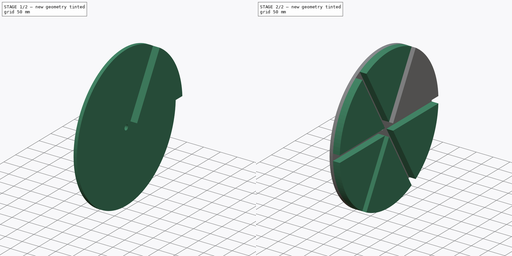
[diagram: build sequence overview — one tinted view per stage of 2, left to right]
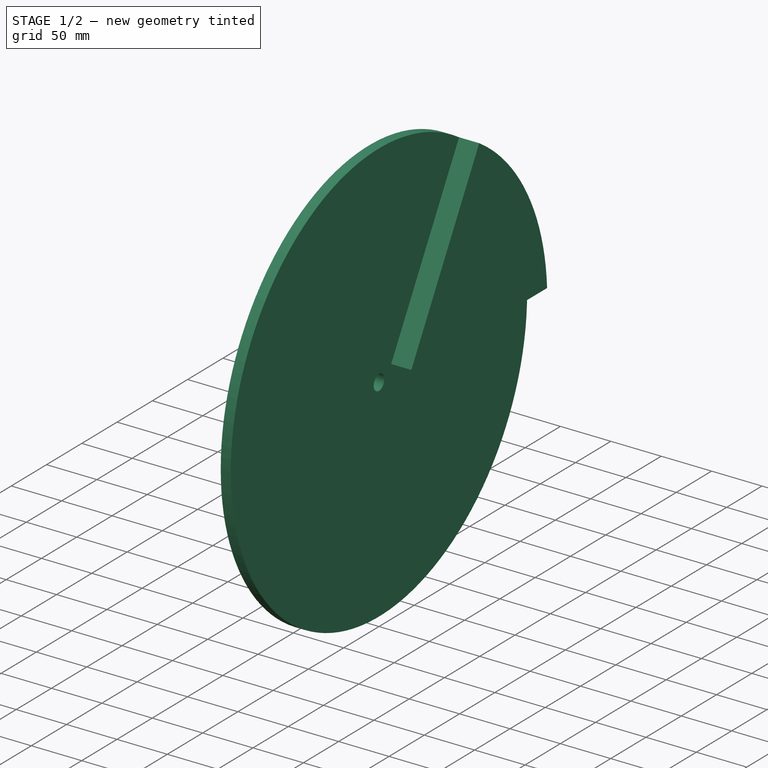
[diagram: stage 1 of 2 — iso view after this stage's code; geometry added in this stage tinted green]
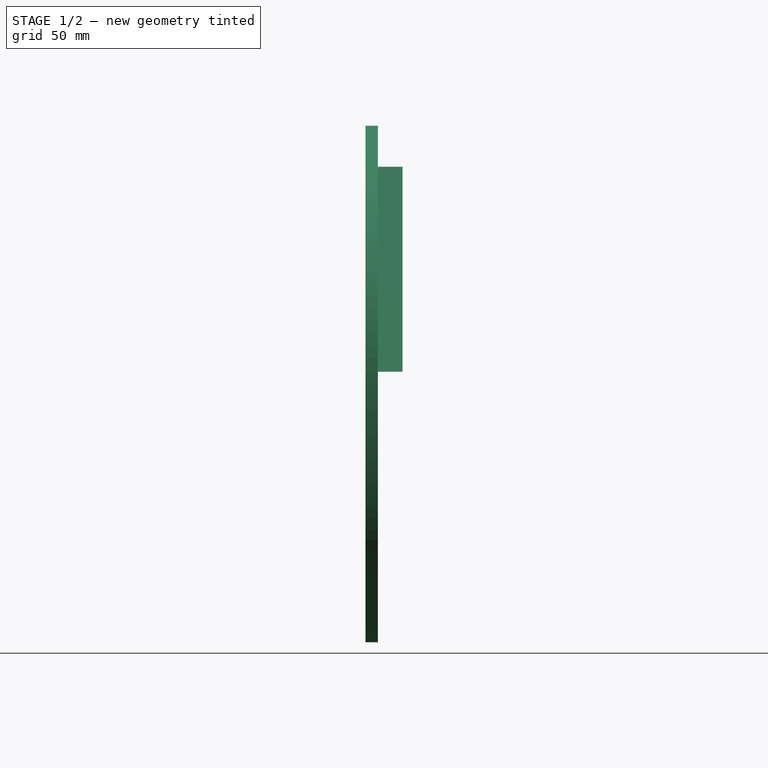
[diagram: stage 1 of 2 — front view after this stage's code; geometry added in this stage tinted green]
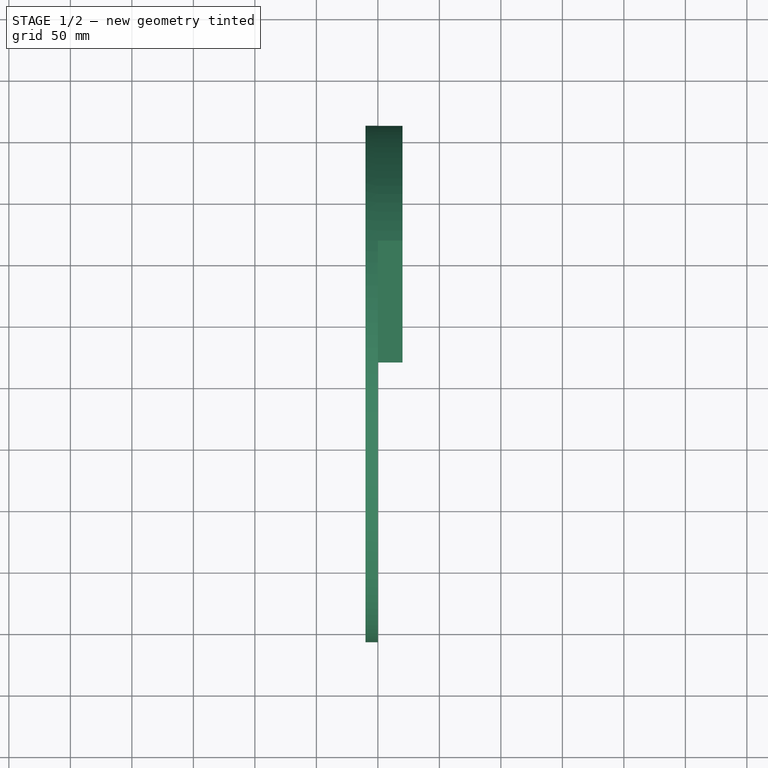
[diagram: stage 1 of 2 — top view after this stage's code; geometry added in this stage tinted green]
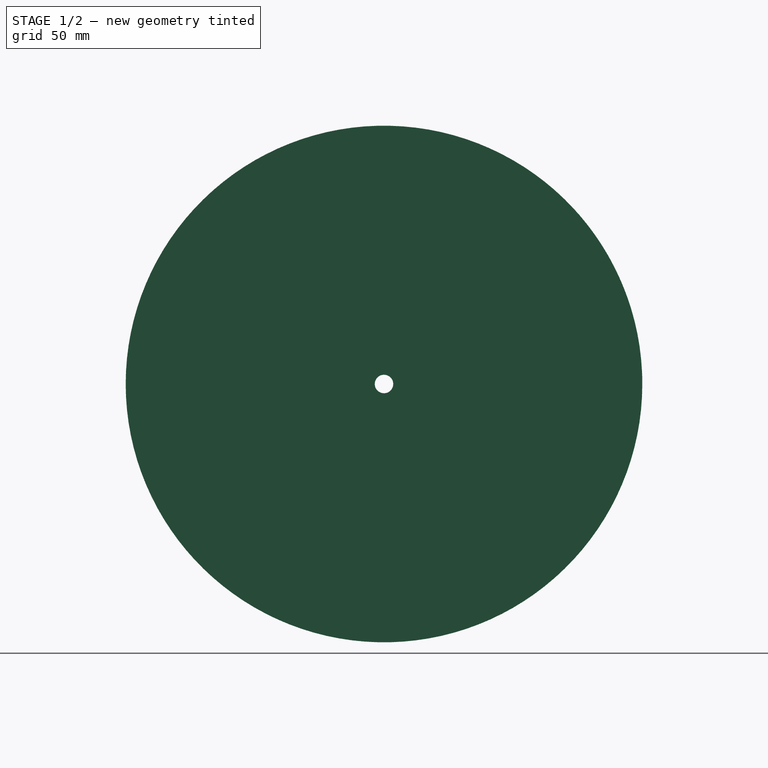
[diagram: stage 1 of 2 — right view after this stage's code; geometry added in this stage tinted green]
FCSTD DOCUMENT  (FreeCAD 0.18R16268 (Git))
Label: Wheel
License: All rights reserved
LicenseURL: http://en.wikipedia.org/wiki/All_rights_reserved
objects: Sketcher::SketchObject×2, PartDesign::Pad×2, App::DocumentObjectGroup×1, PartDesign::CoordinateSystem×1, PartDesign::PolarPattern×1, PartDesign::Body×1, App::Part×1
note: 9 computed .brp shape members not serialized (recipe doc carries the construction recipe); baked Part::Feature solids carry a one-line shape summary decoded from their .brp

FEATURE [App::DocumentObjectGroup] Constraints
FEATURE [PartDesign::CoordinateSystem] LCS_0
  AttacherType = Attacher::AttachEngine3D
FEATURE [Sketcher::SketchObject] Sketch_0
  MapMode = 4
  Placement = pos=(0,0,0) rot=(0.57735,0.57735,0.57735;2.0944rad)
  Support = -> [LCS_0]
  sketch-geometry (2):
    g0: Circle CenterX=0 CenterY=0 CenterZ=0 NormalX=0 NormalY=0 NormalZ=1 AngleXU=0 Radius=210
    g1: Circle CenterX=0 CenterY=0 CenterZ=0 NormalX=0 NormalY=0 NormalZ=1 AngleXU=0 Radius=7.5
  constraints (4):
    c: Coincident(g0,g-1)
    c: Coincident(g1,g0)
    c: Diameter(g1) = 15
    c: Diameter(g0) = 420
FEATURE [Sketcher::SketchObject] Sketch_1
  ExternalGeometry = -> [Sketch_0]
  MapMode = 4
  Placement = pos=(0,0,0) rot=(0.57735,0.57735,0.57735;2.0944rad)
  Support = -> [LCS_0]
  sketch-geometry (7):
    g0: LineSegment [constr] StartX=0 StartY=0 StartZ=0 EndX=210 EndY=0 EndZ=0
    g1: LineSegment [constr] StartX=0 StartY=0 StartZ=0 EndX=105 EndY=181.865 EndZ=0
    g2: LineSegment StartX=113.541 StartY=176.659 StartZ=0 EndX=17.3205 EndY=10 EndZ=0
    g3: LineSegment StartX=209.762 StartY=10 StartZ=0 EndX=17.3205 EndY=10 EndZ=0
    g4: LineSegment [constr] StartX=17.3205 StartY=10 StartZ=0 EndX=17.3205 EndY=0 EndZ=0
    g5: LineSegment [constr] StartX=17.3205 StartY=10 StartZ=0 EndX=8.66025 EndY=15 EndZ=0
    g6: ArcOfCircle CenterX=0 CenterY=0 CenterZ=0 NormalX=0 NormalY=0 NormalZ=1 AngleXU=0 Radius=210 StartAngle=0.0476371 EndAngle=0.99956
  constraints (22):
    c: Coincident(g0,g-1)
    c: PointOnObject(g0,g-3)
    c: Horizontal(g0)
    c: Coincident(g1,g-1)
    c: PointOnObject(g1,g-3)
    c: Angle(g0,g1) = 1.0472
    c: PointOnObject(g2,g-3)
    c: PointOnObject(g3,g-3)
    c: Horizontal(g3)
    c: Parallel(g2,g1)
    c: Coincident(g2,g3)
    c: Coincident(g4,g2)
    c: PointOnObject(g4,g0)
    c: Vertical(g4)
    c: Coincident(g5,g2)
    c: PointOnObject(g5,g1)
    c: Perpendicular(g1,g5)
    c: Equal(g5,g4)
    c: DistanceY(g4,g4) = 10
    c: Coincident(g6,g-1)
    c: Coincident(g6,g2)
    c: PointOnObject(g6,g3)
FEATURE [PartDesign::Pad] Pad
  ClaimChildren = false
  Length = 10
  Length2 = 100
  Profile = -> Sketch_0
  Reversed = true
  Type = 0
FEATURE [PartDesign::Pad] Pad001
  BaseFeature = -> Pad
  ClaimChildren = false
  Length = 20
  Length2 = 100
  Profile = -> Sketch_1
  Type = 0
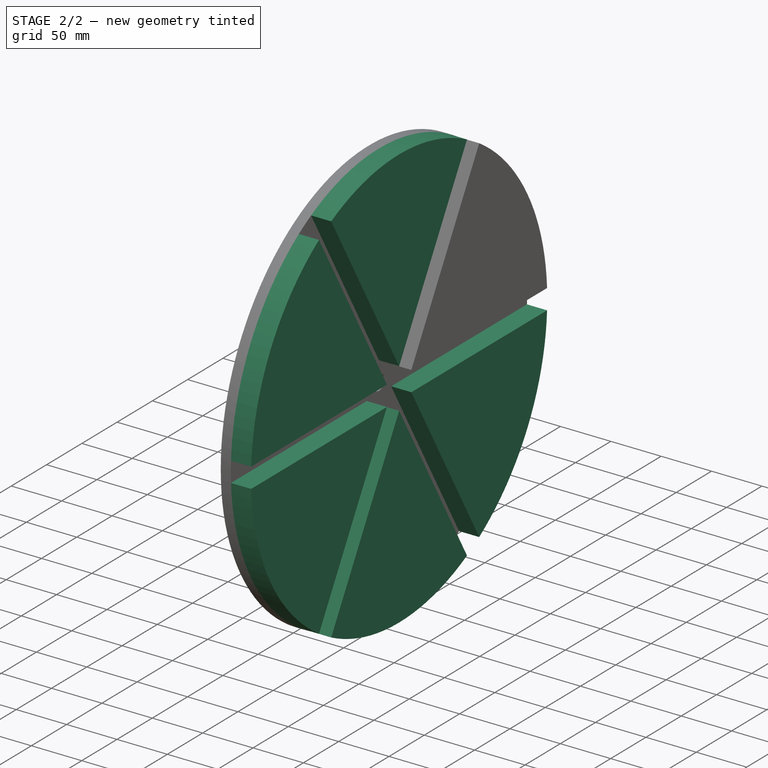
[diagram: stage 2 of 2 — iso view after this stage's code; geometry added in this stage tinted green]
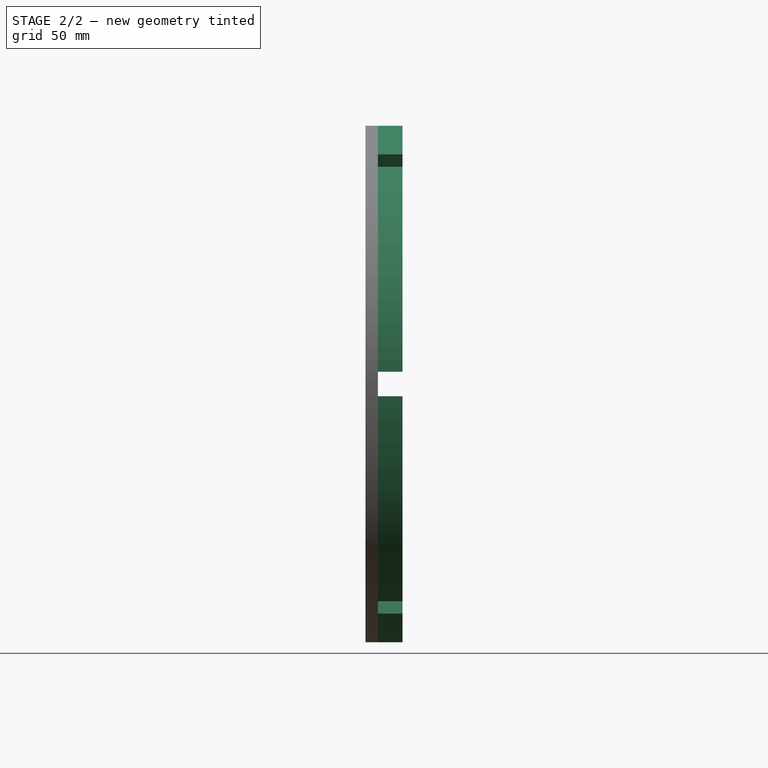
[diagram: stage 2 of 2 — front view after this stage's code; geometry added in this stage tinted green]
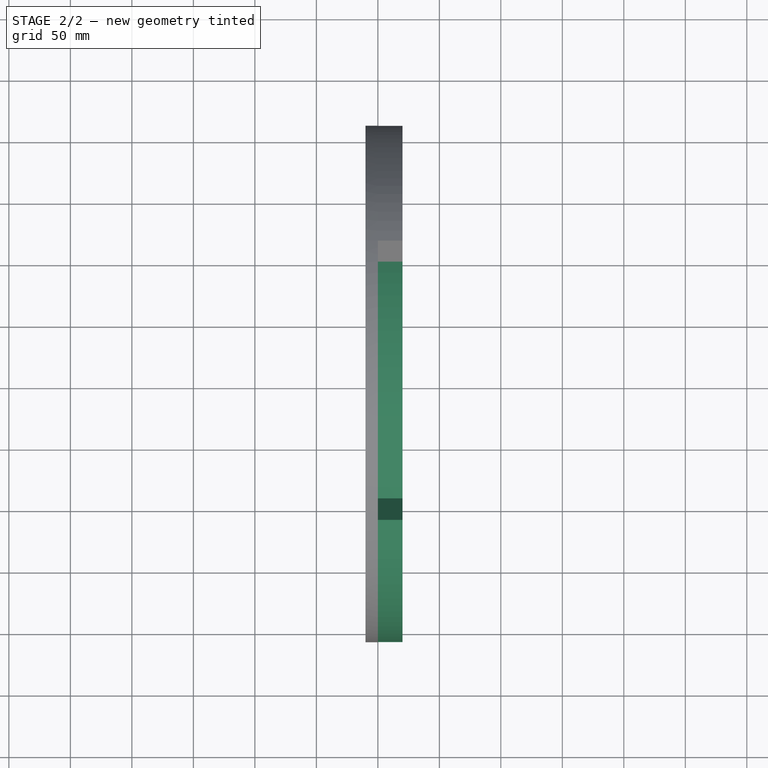
[diagram: stage 2 of 2 — top view after this stage's code; geometry added in this stage tinted green]
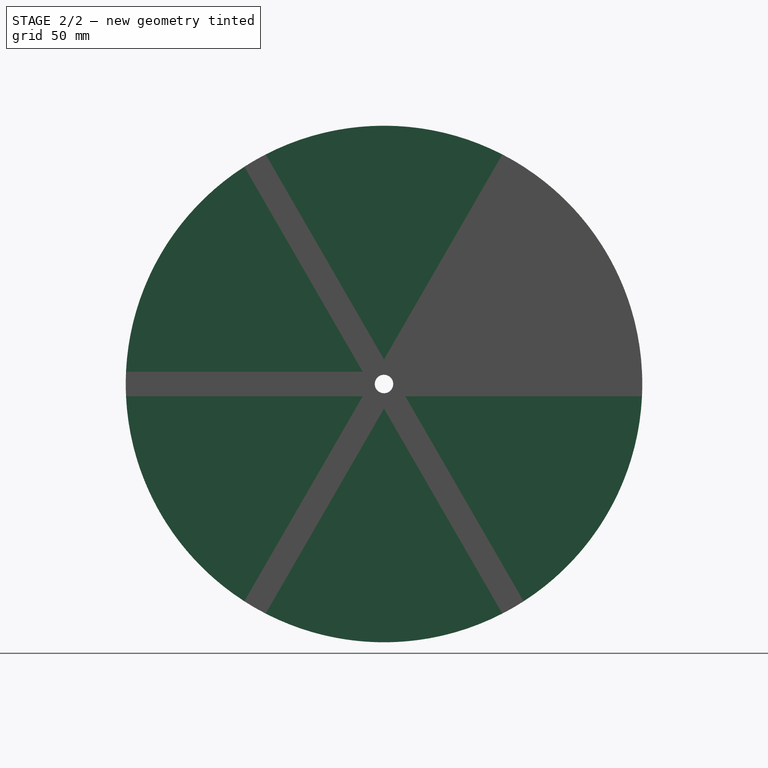
[diagram: stage 2 of 2 — right view after this stage's code; geometry added in this stage tinted green]
FEATURE [PartDesign::PolarPattern] PolarPattern
  Angle = 360
  Axis = -> Sketch_1 [N_Axis]
  BaseFeature = -> Pad001
  Occurrences = 6
  Originals = -> [Pad001]
FEATURE [PartDesign::Body] Body
  Group = -> [Pad,Pad001,PolarPattern]
  Origin = -> Origin001
  Tip = -> PolarPattern
FEATURE [App::Part] Model
  Group = -> [Constraints,LCS_0,Sketch_0,Sketch_1,Body]
  Origin = -> Origin
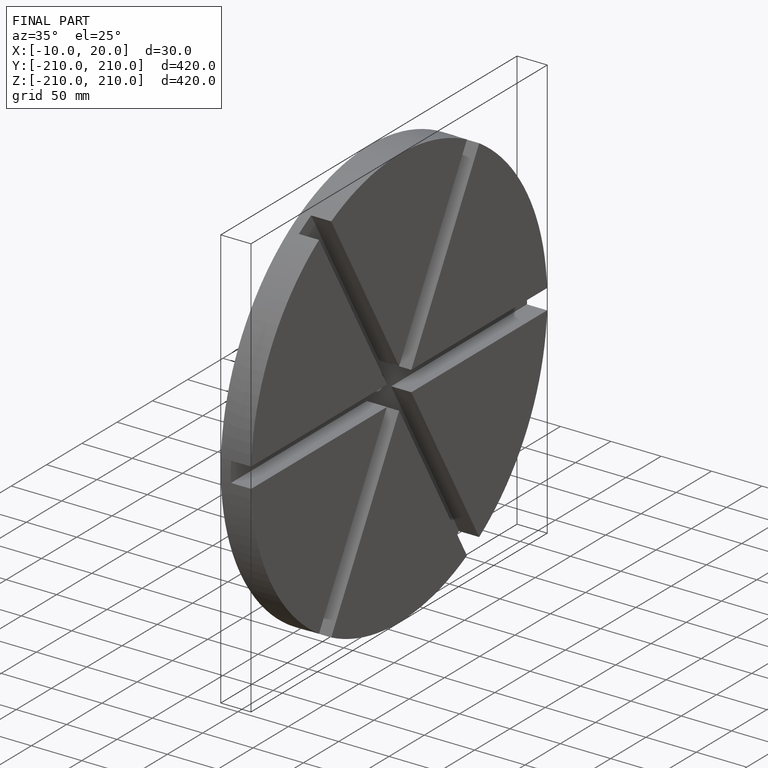
[diagram: finished part — iso view with bounding-box wireframe]
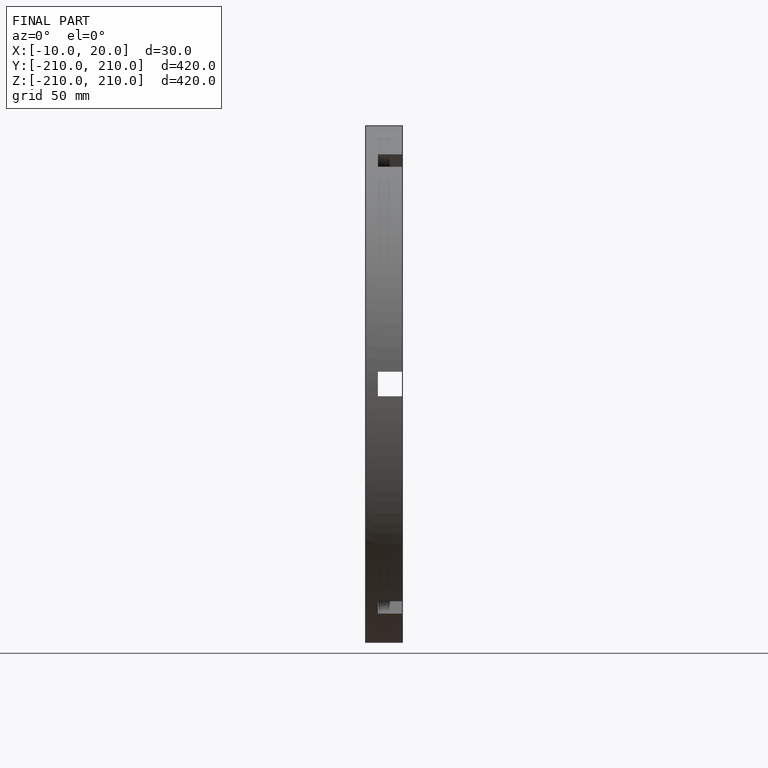
[diagram: finished part — front view with bounding-box wireframe]
